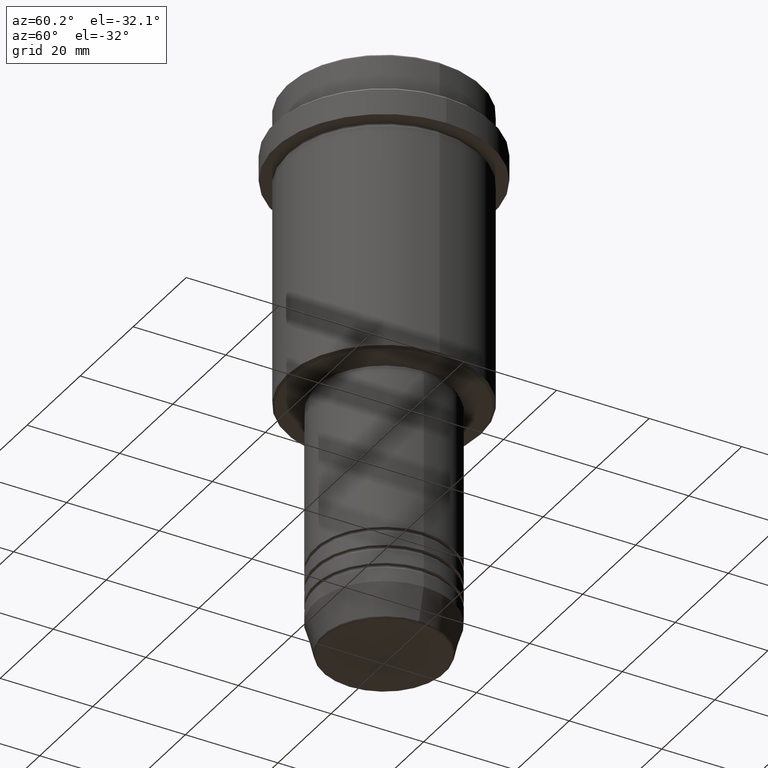
[diagram: clean part render]
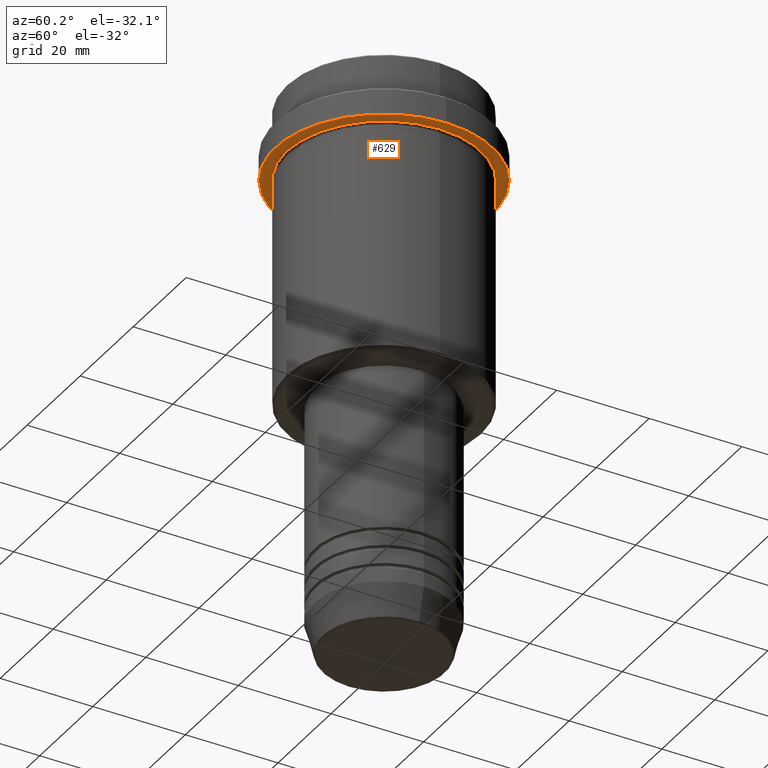
[diagram: same view with one face highlighted and labeled with its STEP entity id]
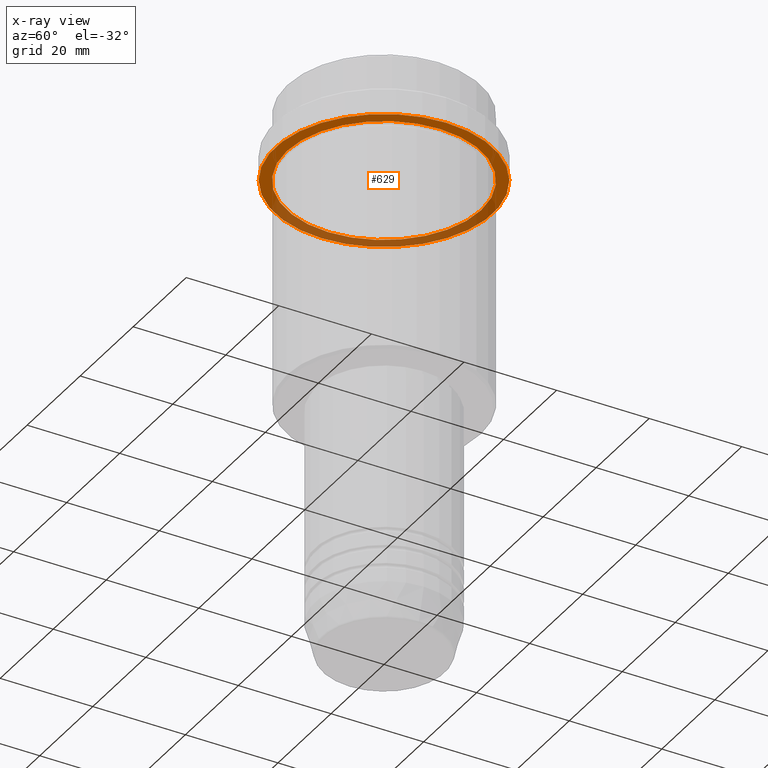
[diagram: x-ray of the same camera — body ghosted, the highlighted face saturated]
A machine part, auxiliary view. The second image highlights one B-rep face of the part: STEP entity #629.
The next image is the same camera in x-ray: the body ghosted, the highlighted face saturated — about 38% of this face is hidden behind the body in this view.
In plain terms, the highlighted planar face has unit normal (0, 0, -1).
Its self-contained STEP definition (entity closure, byte-faithful):
#81 = DIRECTION ( 'NONE',  ( -1.000000000000000000, 0.000000000000000000, -0.000000000000000000 ) ) ;
#103 = VERTEX_POINT ( 'NONE', #500 ) ;
#153 = EDGE_CURVE ( 'NONE', #1104, #103, #883, .T. ) ;
#356 = AXIS2_PLACEMENT_3D ( 'NONE', #512, #1260, #81 ) ;
#365 = EDGE_LOOP ( 'NONE', ( #1017, #741 ) ) ;
#377 = DIRECTION ( 'NONE',  ( -0.000000000000000000, -0.000000000000000000, 1.000000000000000000 ) ) ;
#425 = AXIS2_PLACEMENT_3D ( 'NONE', #549, #984, #1406 ) ;
#426 = CARTESIAN_POINT ( 'NONE',  ( 0.000000000000000000, 0.000000000000000000, -15.00000000000000178 ) ) ;
#451 = CIRCLE ( 'NONE', #425, 20.99999999999999289 ) ;
#477 = ORIENTED_EDGE ( 'NONE', *, *, #983, .F. ) ;
#500 = CARTESIAN_POINT ( 'NONE',  ( -20.99999999999999289, 0.000000000000000000, -15.00000000000000178 ) ) ;
#512 = CARTESIAN_POINT ( 'NONE',  ( 0.000000000000000000, 23.50000000000000355, -15.00000000000000178 ) ) ;
#519 = PLANE ( 'NONE',  #356 ) ;
#526 = CARTESIAN_POINT ( 'NONE',  ( 23.50000000000000355, 0.000000000000000000, -15.00000000000000000 ) ) ;
#531 = EDGE_CURVE ( 'NONE', #586, #1414, #1390, .T. ) ;
#549 = CARTESIAN_POINT ( 'NONE',  ( 0.000000000000000000, 0.000000000000000000, -15.00000000000000178 ) ) ;
#586 = VERTEX_POINT ( 'NONE', #717 ) ;
#619 = FACE_OUTER_BOUND ( 'NONE', #933, .T. ) ;
#629 = ADVANCED_FACE ( 'NONE', ( #1163, #619 ), #519, .T. ) ;
#716 = CARTESIAN_POINT ( 'NONE',  ( 0.000000000000000000, 0.000000000000000000, -15.00000000000000000 ) ) ;
#717 = CARTESIAN_POINT ( 'NONE',  ( -23.50000000000000711, 2.877919977996281109E-15, -15.00000000000000000 ) ) ;
#741 = ORIENTED_EDGE ( 'NONE', *, *, #153, .T. ) ;
#817 = CIRCLE ( 'NONE', #1119, 23.50000000000000355 ) ;
#855 = DIRECTION ( 'NONE',  ( -0.000000000000000000, -0.000000000000000000, 1.000000000000000000 ) ) ;
#883 = CIRCLE ( 'NONE', #1115, 20.99999999999999289 ) ;
#933 = EDGE_LOOP ( 'NONE', ( #477, #1209 ) ) ;
#976 = AXIS2_PLACEMENT_3D ( 'NONE', #1058, #377, #1279 ) ;
#983 = EDGE_CURVE ( 'NONE', #1414, #586, #817, .T. ) ;
#984 = DIRECTION ( 'NONE',  ( -0.000000000000000000, -0.000000000000000000, 1.000000000000000000 ) ) ;
#1017 = ORIENTED_EDGE ( 'NONE', *, *, #1128, .T. ) ;
#1058 = CARTESIAN_POINT ( 'NONE',  ( 0.000000000000000000, 0.000000000000000000, -15.00000000000000000 ) ) ;
#1104 = VERTEX_POINT ( 'NONE', #1300 ) ;
#1115 = AXIS2_PLACEMENT_3D ( 'NONE', #426, #855, #1186 ) ;
#1119 = AXIS2_PLACEMENT_3D ( 'NONE', #716, #1385, #1150 ) ;
#1128 = EDGE_CURVE ( 'NONE', #103, #1104, #451, .T. ) ;
#1150 = DIRECTION ( 'NONE',  ( 1.000000000000000000, 0.000000000000000000, 0.000000000000000000 ) ) ;
#1163 = FACE_BOUND ( 'NONE', #365, .T. ) ;
#1186 = DIRECTION ( 'NONE',  ( -1.000000000000000000, 0.000000000000000000, 0.000000000000000000 ) ) ;
#1209 = ORIENTED_EDGE ( 'NONE', *, *, #531, .F. ) ;
#1260 = DIRECTION ( 'NONE',  ( 0.000000000000000000, 0.000000000000000000, -1.000000000000000000 ) ) ;
#1279 = DIRECTION ( 'NONE',  ( 1.000000000000000000, 0.000000000000000000, 0.000000000000000000 ) ) ;
#1300 = CARTESIAN_POINT ( 'NONE',  ( 20.99999999999999289, 2.571758278209440872E-15, -15.00000000000000178 ) ) ;
#1385 = DIRECTION ( 'NONE',  ( -0.000000000000000000, -0.000000000000000000, 1.000000000000000000 ) ) ;
#1390 = CIRCLE ( 'NONE', #976, 23.50000000000000355 ) ;
#1406 = DIRECTION ( 'NONE',  ( -1.000000000000000000, 0.000000000000000000, 0.000000000000000000 ) ) ;
#1414 = VERTEX_POINT ( 'NONE', #526 ) ;